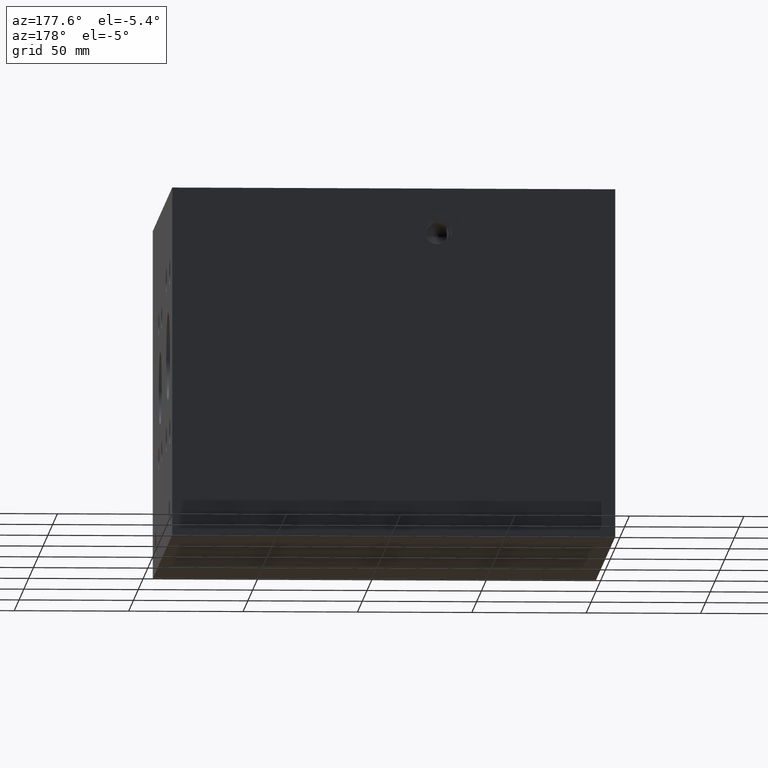
[diagram: clean part render]
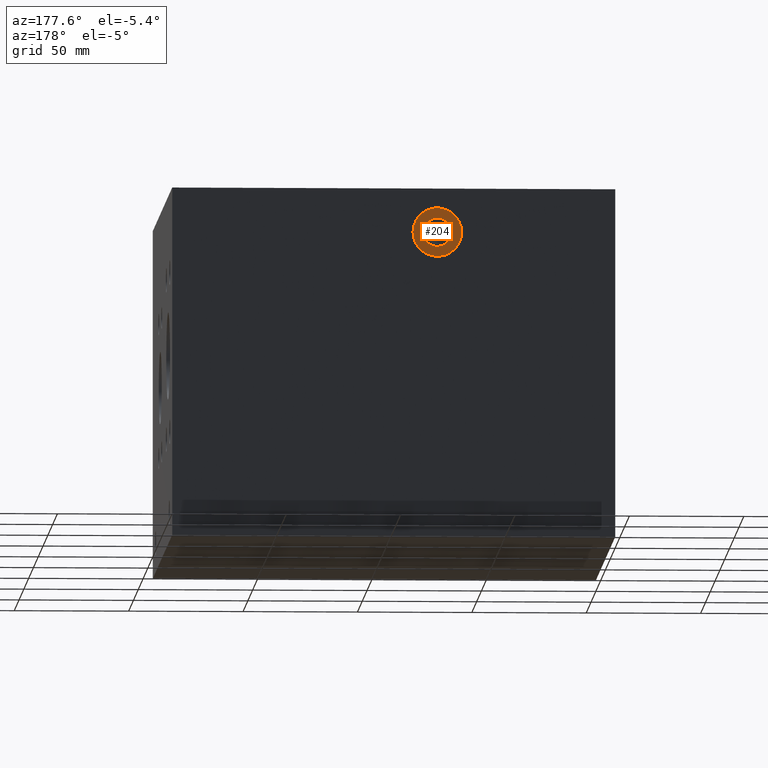
[diagram: same view with one face highlighted and labeled with its STEP entity id]
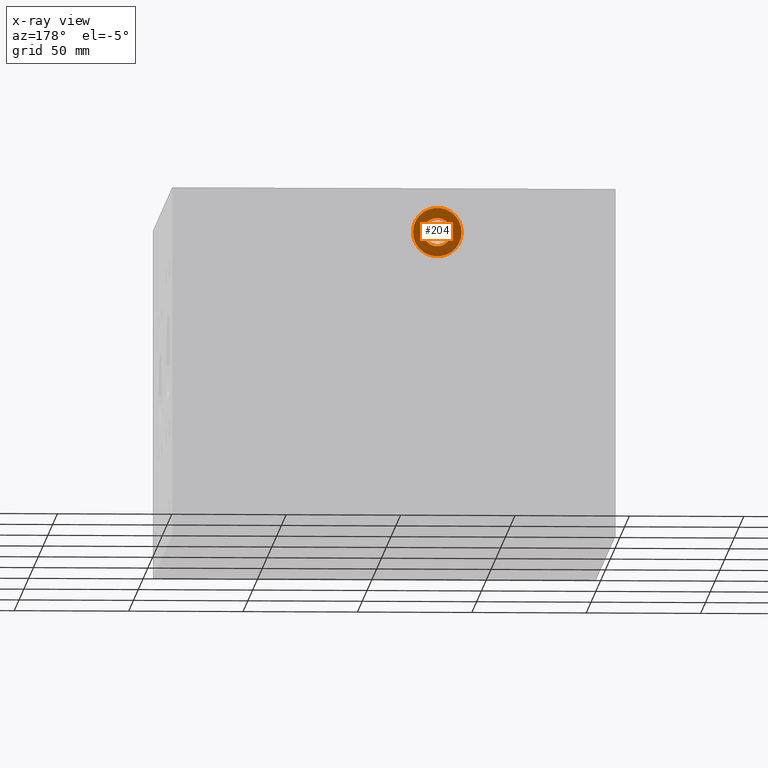
[diagram: x-ray of the same camera — body ghosted, the highlighted face saturated]
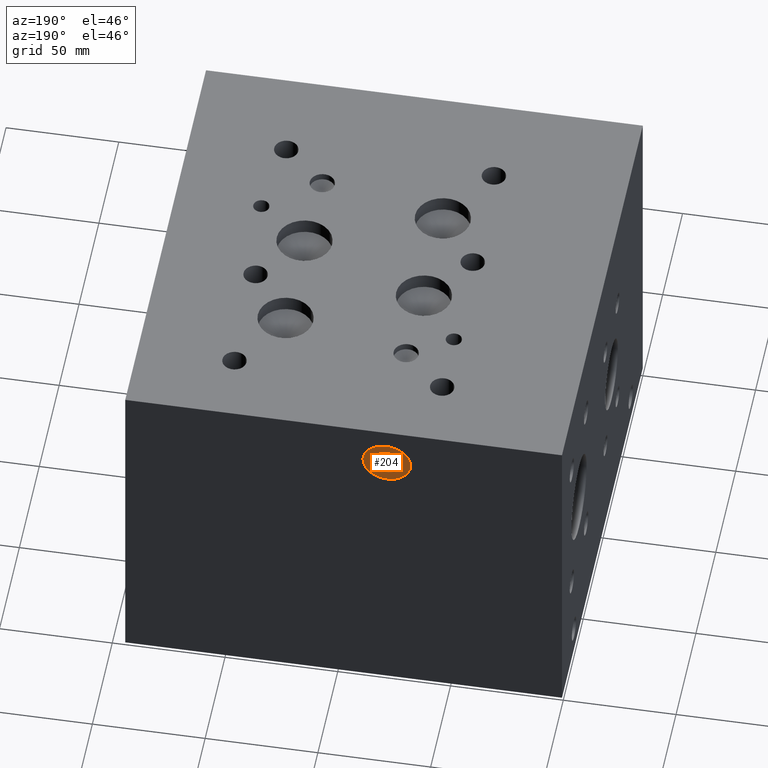
[diagram: same view with one face highlighted and labeled with its STEP entity id]
A machine part, auxiliary view. The second image highlights one B-rep face of the part: STEP entity #204.
The next image is the same camera in x-ray: the body ghosted, the highlighted face saturated — about 0% of this face is hidden behind the body in this view.
A second angle (auxiliary view) of the same face is appended — the face is thin or edge-on in the first view.
In plain terms, the highlighted planar face has unit normal (0, -1, 0).
Its self-contained STEP definition (entity closure, byte-faithful):
#170=CARTESIAN_POINT('',(83.972399999999993,202.412600000000000,133.350000000000020));
#171=VERTEX_POINT('',#170);
#172=CARTESIAN_POINT('',(77.774799999999999,202.412600000000000,133.350000000000020));
#173=DIRECTION('',(0.0,1.0,0.0));
#174=DIRECTION('',(1.0,0.0,0.0));
#175=AXIS2_PLACEMENT_3D('',#172,#173,#174);
#176=CIRCLE('',#175,6.197599999999994);
#177=EDGE_CURVE('',#171,#171,#176,.T.);
#185=CARTESIAN_POINT('',(86.194900000000004,202.412600000000000,133.350000000000020));
#186=DIRECTION('',(0.0,-1.0,0.0));
#187=DIRECTION('',(0.0,0.0,-1.0));
#188=AXIS2_PLACEMENT_3D('',#185,#186,#187);
#189=PLANE('',#188);
#190=CARTESIAN_POINT('',(88.417400000000015,202.412600000000000,133.350000000000020));
#191=VERTEX_POINT('',#190);
#192=CARTESIAN_POINT('',(77.774799999999999,202.412600000000000,133.350000000000020));
#193=DIRECTION('',(0.0,1.0,0.0));
#194=DIRECTION('',(1.0,0.0,0.0));
#195=AXIS2_PLACEMENT_3D('',#192,#193,#194);
#196=CIRCLE('',#195,10.642600000000009);
#197=EDGE_CURVE('',#191,#191,#196,.T.);
#198=ORIENTED_EDGE('',*,*,#197,.T.);
#199=EDGE_LOOP('',(#198));
#200=FACE_OUTER_BOUND('',#199,.T.);
#201=ORIENTED_EDGE('',*,*,#177,.F.);
#202=EDGE_LOOP('',(#201));
#203=FACE_BOUND('',#202,.T.);
#204=ADVANCED_FACE('',(#200,#203),#189,.F.);